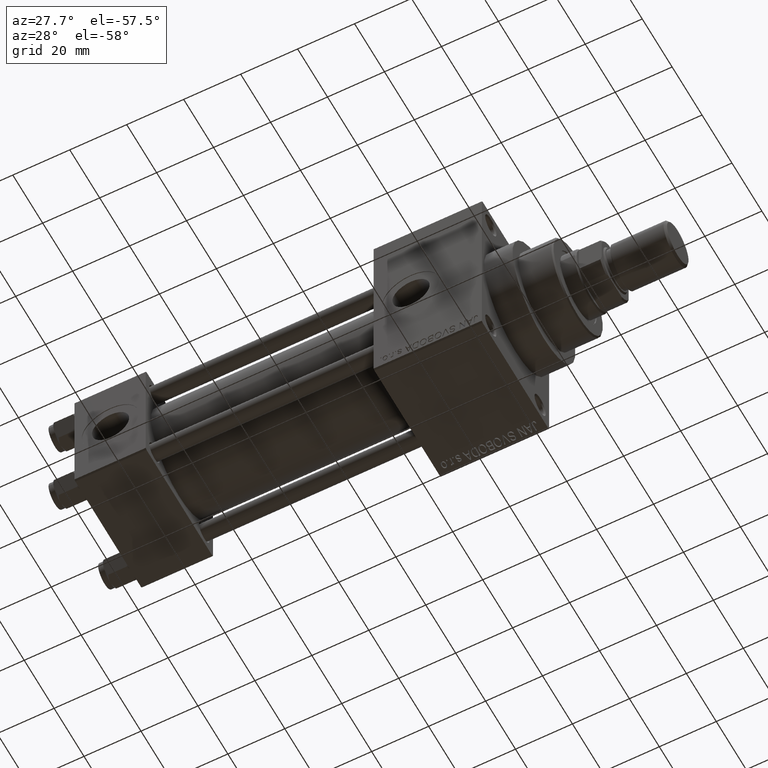
[diagram: clean part render]
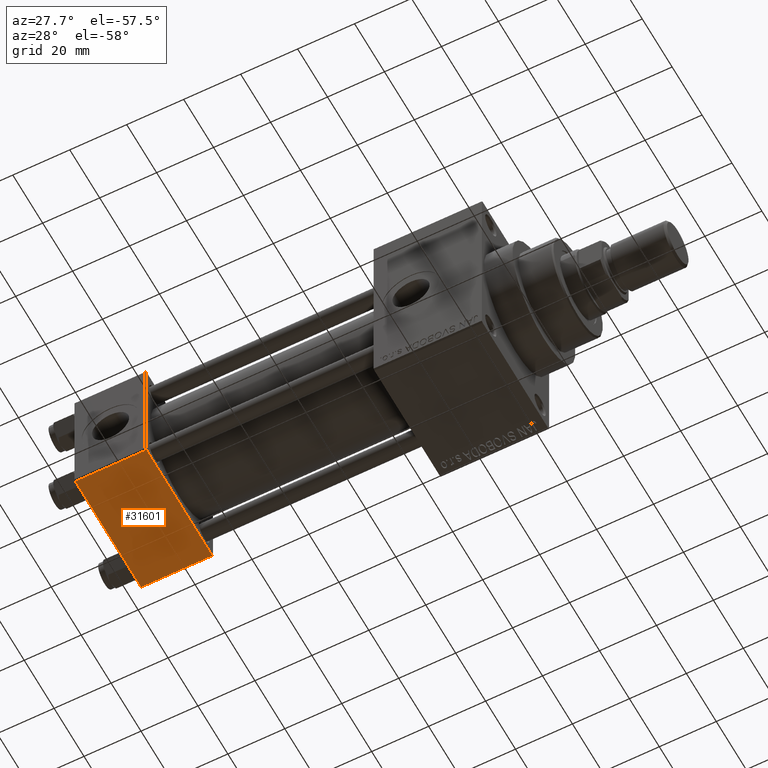
[diagram: same view with one face highlighted and labeled with its STEP entity id]
A machine part, auxiliary view. The second image highlights one B-rep face of the part: STEP entity #31601.
In plain terms, the highlighted planar face has unit normal (0, 0, -1).
Its self-contained STEP definition (entity closure, byte-faithful):
#1333 = EDGE_CURVE ( 'NONE', #17172, #34114, #21354, .T. ) ;
#1470 = VECTOR ( 'NONE', #49357, 1000.000000000000000 ) ;
#3496 = CARTESIAN_POINT ( 'NONE',  ( 25.00000000000000000, 22.50000000000000000, -22.49999999999999645 ) ) ;
#3518 = VERTEX_POINT ( 'NONE', #46857 ) ;
#5479 = DIRECTION ( 'NONE',  ( 0.000000000000000000, 2.312964634635742957E-16, -1.000000000000000000 ) ) ;
#7132 = CARTESIAN_POINT ( 'NONE',  ( 25.00000000000000000, 21.99999999999999289, -22.49999999999999645 ) ) ;
#7827 = ORIENTED_EDGE ( 'NONE', *, *, #26927, .T. ) ;
#7866 = DIRECTION ( 'NONE',  ( 1.000000000000000000, 0.000000000000000000, 0.000000000000000000 ) ) ;
#7957 = AXIS2_PLACEMENT_3D ( 'NONE', #20519, #5479, #32282 ) ;
#8082 = ORIENTED_EDGE ( 'NONE', *, *, #1333, .T. ) ;
#8578 = CARTESIAN_POINT ( 'NONE',  ( 0.000000000000000000, -21.99999999999997158, -22.50000000000000711 ) ) ;
#12716 = VECTOR ( 'NONE', #36381, 1000.000000000000000 ) ;
#17172 = VERTEX_POINT ( 'NONE', #29305 ) ;
#17262 = FACE_OUTER_BOUND ( 'NONE', #21994, .T. ) ;
#20519 = CARTESIAN_POINT ( 'NONE',  ( 25.00000000000000000, 22.50000000000000000, -22.49999999999999645 ) ) ;
#20859 = CARTESIAN_POINT ( 'NONE',  ( 0.000000000000000000, -21.99999999999998579, -22.50000000000000711 ) ) ;
#21354 = LINE ( 'NONE', #20859, #12716 ) ;
#21994 = EDGE_LOOP ( 'NONE', ( #30642, #7827, #36133, #8082 ) ) ;
#26392 = CARTESIAN_POINT ( 'NONE',  ( 0.000000000000000000, 21.99999999999999289, -22.49999999999999645 ) ) ;
#26927 = EDGE_CURVE ( 'NONE', #37726, #3518, #34913, .T. ) ;
#28260 = CARTESIAN_POINT ( 'NONE',  ( 0.000000000000000000, 22.50000000000000000, -22.49999999999999645 ) ) ;
#29256 = EDGE_CURVE ( 'NONE', #3518, #17172, #31038, .T. ) ;
#29305 = CARTESIAN_POINT ( 'NONE',  ( 25.00000000000000000, -21.99999999999997158, -22.50000000000000711 ) ) ;
#30642 = ORIENTED_EDGE ( 'NONE', *, *, #48121, .F. ) ;
#31038 = LINE ( 'NONE', #3496, #1470 ) ;
#31601 = ADVANCED_FACE ( 'NONE', ( #17262 ), #32534, .T. ) ;
#31771 = LINE ( 'NONE', #28260, #42743 ) ;
#32282 = DIRECTION ( 'NONE',  ( 0.000000000000000000, 1.000000000000000000, 2.312964634635742957E-16 ) ) ;
#32534 = PLANE ( 'NONE',  #7957 ) ;
#34114 = VERTEX_POINT ( 'NONE', #8578 ) ;
#34913 = LINE ( 'NONE', #7132, #40604 ) ;
#36133 = ORIENTED_EDGE ( 'NONE', *, *, #29256, .T. ) ;
#36381 = DIRECTION ( 'NONE',  ( -1.000000000000000000, 0.000000000000000000, 0.000000000000000000 ) ) ;
#37726 = VERTEX_POINT ( 'NONE', #26392 ) ;
#40604 = VECTOR ( 'NONE', #7866, 1000.000000000000000 ) ;
#42743 = VECTOR ( 'NONE', #43290, 1000.000000000000000 ) ;
#43290 = DIRECTION ( 'NONE',  ( 0.000000000000000000, -1.000000000000000000, -2.312964634635742957E-16 ) ) ;
#46857 = CARTESIAN_POINT ( 'NONE',  ( 25.00000000000000000, 21.99999999999999289, -22.49999999999999645 ) ) ;
#48121 = EDGE_CURVE ( 'NONE', #37726, #34114, #31771, .T. ) ;
#49357 = DIRECTION ( 'NONE',  ( 0.000000000000000000, -1.000000000000000000, -2.312964634635742957E-16 ) ) ;